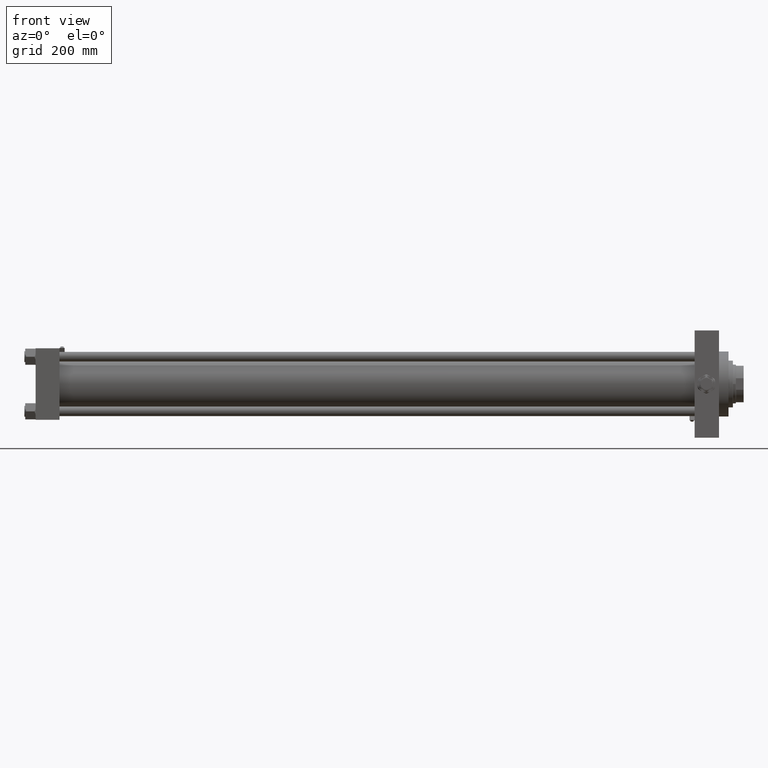
[diagram: clean part render]
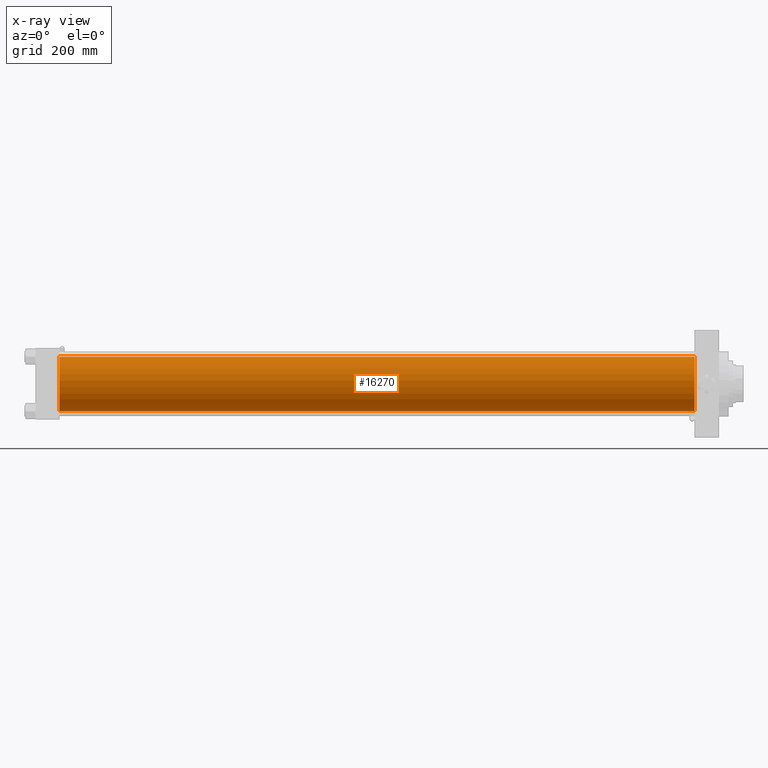
[diagram: x-ray — body ghosted, one internal face saturated and labeled with its STEP entity id]
A machine part, front view, then the same camera in x-ray: the body is ghosted and one INTERNAL B-rep face — a face not visible from any outside direction — is saturated and labeled: STEP entity #16270.
In plain terms, the highlighted cylindrical surface (edge-blend (fillet) strip) has radius 62.5 mm, axis along (-1, -0, -0).
Its self-contained STEP definition (entity closure, byte-faithful):
#1348 = ORIENTED_EDGE ( 'NONE', *, *, #11173, .F. ) ;
#1550 = DIRECTION ( 'NONE',  ( -1.000000000000000000, -0.000000000000000000, -0.000000000000000000 ) ) ;
#2455 = EDGE_LOOP ( 'NONE', ( #34283, #23872, #1348, #44784 ) ) ;
#4523 = CARTESIAN_POINT ( 'NONE',  ( 1519.000000000000000, 5.051957280705747162E-15, -62.50000000000000000 ) ) ;
#4652 = DIRECTION ( 'NONE',  ( 1.000000000000000000, 0.000000000000000000, 0.000000000000000000 ) ) ;
#5067 = EDGE_CURVE ( 'NONE', #25795, #46620, #17524, .T. ) ;
#7523 = AXIS2_PLACEMENT_3D ( 'NONE', #26644, #19427, #34610 ) ;
#9134 = AXIS2_PLACEMENT_3D ( 'NONE', #28339, #4652, #36565 ) ;
#9514 = LINE ( 'NONE', #49153, #15983 ) ;
#9518 = DIRECTION ( 'NONE',  ( -1.000000000000000000, -0.000000000000000000, -0.000000000000000000 ) ) ;
#10014 = DIRECTION ( 'NONE',  ( 0.000000000000000000, 0.000000000000000000, 1.000000000000000000 ) ) ;
#11173 = EDGE_CURVE ( 'NONE', #50579, #46620, #39537, .T. ) ;
#13908 = CARTESIAN_POINT ( 'NONE',  ( 1519.000000000000000, -2.602085213965210642E-15, 0.000000000000000000 ) ) ;
#15983 = VECTOR ( 'NONE', #21884, 1000.000000000000000 ) ;
#16106 = VECTOR ( 'NONE', #9518, 1000.000000000000000 ) ;
#16270 = ADVANCED_FACE ( 'NONE', ( #17270 ), #37578, .F. ) ;
#17270 = FACE_OUTER_BOUND ( 'NONE', #2455, .T. ) ;
#17524 = LINE ( 'NONE', #17785, #16106 ) ;
#17785 = CARTESIAN_POINT ( 'NONE',  ( 1519.000000000000000, 5.051957280705747162E-15, -62.50000000000000000 ) ) ;
#19427 = DIRECTION ( 'NONE',  ( 1.000000000000000000, 0.000000000000000000, 0.000000000000000000 ) ) ;
#21257 = EDGE_CURVE ( 'NONE', #49903, #50579, #9514, .T. ) ;
#21884 = DIRECTION ( 'NONE',  ( -1.000000000000000000, -0.000000000000000000, -0.000000000000000000 ) ) ;
#23872 = ORIENTED_EDGE ( 'NONE', *, *, #5067, .T. ) ;
#24774 = CIRCLE ( 'NONE', #7523, 62.50000000000000000 ) ;
#25519 = CARTESIAN_POINT ( 'NONE',  ( 1519.000000000000000, -2.602085213965210642E-15, 62.50000000000000000 ) ) ;
#25795 = VERTEX_POINT ( 'NONE', #4523 ) ;
#26644 = CARTESIAN_POINT ( 'NONE',  ( 1519.000000000000000, -2.602085213965210642E-15, 0.000000000000000000 ) ) ;
#28339 = CARTESIAN_POINT ( 'NONE',  ( 55.00000000000000000, -2.602085213965210642E-15, 0.000000000000000000 ) ) ;
#29519 = CARTESIAN_POINT ( 'NONE',  ( 55.00000000000000000, -2.602085213965210642E-15, 62.50000000000000000 ) ) ;
#34283 = ORIENTED_EDGE ( 'NONE', *, *, #37746, .T. ) ;
#34610 = DIRECTION ( 'NONE',  ( 0.000000000000000000, 0.000000000000000000, -1.000000000000000000 ) ) ;
#36565 = DIRECTION ( 'NONE',  ( 0.000000000000000000, 0.000000000000000000, -1.000000000000000000 ) ) ;
#37578 = CYLINDRICAL_SURFACE ( 'NONE', #46197, 62.50000000000000000 ) ;
#37746 = EDGE_CURVE ( 'NONE', #49903, #25795, #24774, .T. ) ;
#39537 = CIRCLE ( 'NONE', #9134, 62.50000000000000000 ) ;
#40608 = CARTESIAN_POINT ( 'NONE',  ( 55.00000000000000000, 5.051957280705747162E-15, -62.50000000000000000 ) ) ;
#44784 = ORIENTED_EDGE ( 'NONE', *, *, #21257, .F. ) ;
#46197 = AXIS2_PLACEMENT_3D ( 'NONE', #13908, #1550, #10014 ) ;
#46620 = VERTEX_POINT ( 'NONE', #40608 ) ;
#49153 = CARTESIAN_POINT ( 'NONE',  ( 1519.000000000000000, -2.602085213965210642E-15, 62.50000000000000000 ) ) ;
#49903 = VERTEX_POINT ( 'NONE', #25519 ) ;
#50579 = VERTEX_POINT ( 'NONE', #29519 ) ;